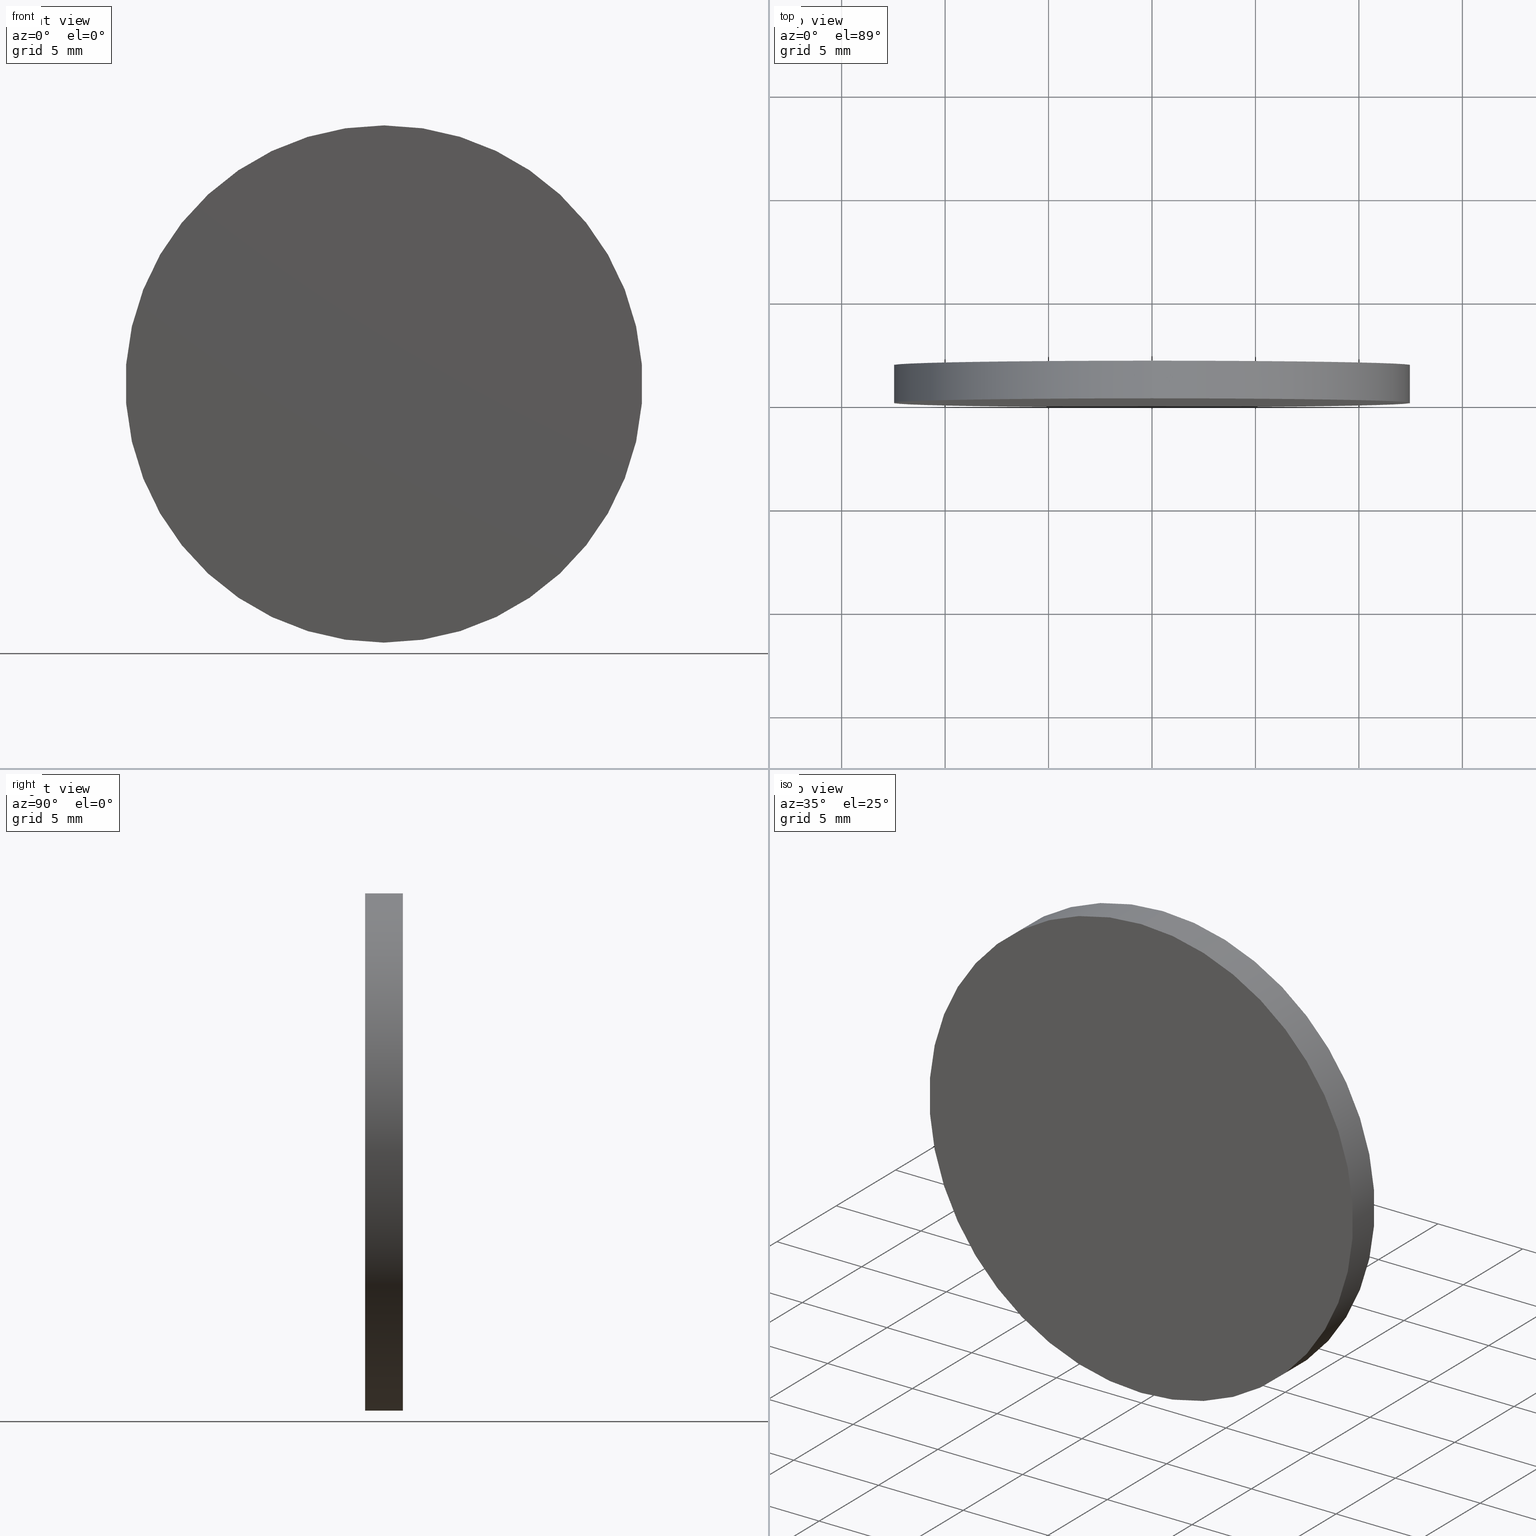
[diagram: canonical four-view strip — front | top / right | iso, engineering-drawing reading convention]
A machine part, canonical four-view strip (front | top / right | iso — engineering-drawing reading convention). The complete STEP part file that produces these views, byte-faithful:
ISO-10303-21;
HEADER;
FILE_DESCRIPTION (( 'STEP AP214' ),
    '1' );
FILE_NAME ('248588.STEP',
    '2019-08-06T03:28:31',
    ( 'user' ),
    ( '΢���й�' ),
    'SwSTEP 2.0',
    'SolidWorks 2016',
    '' );
FILE_SCHEMA (( 'AUTOMOTIVE_DESIGN' ));
ENDSEC;

DATA;
#1 = ORIENTED_EDGE ( 'NONE', *, *, #126, .F. ) ;
#2 = COLOUR_RGB ( '',1.000000000000000000, 1.000000000000000000, 1.000000000000000000 ) ;
#3 = FILL_AREA_STYLE ('',( #121 ) ) ;
#4 = ORIENTED_EDGE ( 'NONE', *, *, #66, .T. ) ;
#5 = PLANE ( 'NONE',  #127 ) ;
#6 = APPLICATION_CONTEXT ( 'automotive_design' ) ;
#7 = PRODUCT_CONTEXT ( 'NONE', #59, 'mechanical' ) ;
#8 = AXIS2_PLACEMENT_3D ( 'NONE', #47, #119, #57 ) ;
#9 = EDGE_LOOP ( 'NONE', ( #109, #114, #4, #116 ) ) ;
#10 = DIRECTION ( 'NONE',  ( 0.0000000000000000000, 0.0000000000000000000, -1.000000000000000000 ) ) ;
#11 = CARTESIAN_POINT ( 'NONE',  ( 1.530808498934191500E-015, 0.0000000000000000000, 12.50000000000000000 ) ) ;
#12 = AXIS2_PLACEMENT_3D ( 'NONE', #105, #93, #60 ) ;
#13 = VERTEX_POINT ( 'NONE', #115 ) ;
#14 = LINE ( 'NONE', #63, #22 ) ;
#15 = PRODUCT_DEFINITION_SHAPE ( 'NONE', 'NONE',  #118 ) ;
#16 = ADVANCED_FACE ( 'NONE', ( #88 ), #41, .T. ) ;
#17 =( NAMED_UNIT ( * ) SI_UNIT ( $, .STERADIAN. ) SOLID_ANGLE_UNIT ( ) );
#18 = AXIS2_PLACEMENT_3D ( 'NONE', #62, #137, #98 ) ;
#19 = DIRECTION ( 'NONE',  ( 0.0000000000000000000, -0.0000000000000000000, 1.000000000000000000 ) ) ;
#20 = CARTESIAN_POINT ( 'NONE',  ( 0.0000000000000000000, 1.820000000000000100, 0.0000000000000000000 ) ) ;
#21 = DIRECTION ( 'NONE',  ( 0.0000000000000000000, -0.0000000000000000000, 1.000000000000000000 ) ) ;
#22 = VECTOR ( 'NONE', #65, 1000.000000000000000 ) ;
#23 = PRODUCT_RELATED_PRODUCT_CATEGORY ( 'part', '', ( #67 ) ) ;
#24 = CARTESIAN_POINT ( 'NONE',  ( 0.0000000000000000000, 1.820000000000000100, 0.0000000000000000000 ) ) ;
#25 = PRESENTATION_LAYER_ASSIGNMENT (  '', '', ( #100 ) ) ;
#26 =( NAMED_UNIT ( * ) PLANE_ANGLE_UNIT ( ) SI_UNIT ( $, .RADIAN. ) );
#27 = UNCERTAINTY_MEASURE_WITH_UNIT (LENGTH_MEASURE( 1.000000000000000100E-005 ), #71, 'distance_accuracy_value', 'NONE');
#28 =( GEOMETRIC_REPRESENTATION_CONTEXT ( 3 ) GLOBAL_UNCERTAINTY_ASSIGNED_CONTEXT ( ( #69 ) ) GLOBAL_UNIT_ASSIGNED_CONTEXT ( ( #85, #26, #48 ) ) REPRESENTATION_CONTEXT ( 'NONE', 'WORKASPACE' ) );
#29 = ORIENTED_EDGE ( 'NONE', *, *, #112, .F. ) ;
#30 = CARTESIAN_POINT ( 'NONE',  ( 0.0000000000000000000, 1.820000000000000100, -12.50000000000000000 ) ) ;
#31 = PRESENTATION_STYLE_ASSIGNMENT (( #120 ) ) ;
#32 = AXIS2_PLACEMENT_3D ( 'NONE', #45, #122, #37 ) ;
#33 = EDGE_LOOP ( 'NONE', ( #106, #110 ) ) ;
#34 =( NAMED_UNIT ( * ) PLANE_ANGLE_UNIT ( ) SI_UNIT ( $, .RADIAN. ) );
#35 = ORIENTED_EDGE ( 'NONE', *, *, #66, .F. ) ;
#36 = DIRECTION ( 'NONE',  ( 0.0000000000000000000, 0.0000000000000000000, 1.000000000000000000 ) ) ;
#37 = DIRECTION ( 'NONE',  ( 0.0000000000000000000, 0.0000000000000000000, 1.000000000000000000 ) ) ;
#38 = VECTOR ( 'NONE', #111, 1000.000000000000000 ) ;
#39 =( NAMED_UNIT ( * ) PLANE_ANGLE_UNIT ( ) SI_UNIT ( $, .RADIAN. ) );
#40 =( GEOMETRIC_REPRESENTATION_CONTEXT ( 3 ) GLOBAL_UNCERTAINTY_ASSIGNED_CONTEXT ( ( #97 ) ) GLOBAL_UNIT_ASSIGNED_CONTEXT ( ( #61, #39, #124 ) ) REPRESENTATION_CONTEXT ( 'NONE', 'WORKASPACE' ) );
#41 = CYLINDRICAL_SURFACE ( 'NONE', #8, 12.50000000000000000 ) ;
#42 = CARTESIAN_POINT ( 'NONE',  ( 1.530808498934191500E-015, 1.820000000000000100, 12.50000000000000000 ) ) ;
#43 = CARTESIAN_POINT ( 'NONE',  ( 0.0000000000000000000, 1.820000000000000100, -12.50000000000000000 ) ) ;
#44 = CARTESIAN_POINT ( 'NONE',  ( 0.0000000000000000000, 0.0000000000000000000, 0.0000000000000000000 ) ) ;
#45 = CARTESIAN_POINT ( 'NONE',  ( 0.0000000000000000000, 0.0000000000000000000, 0.0000000000000000000 ) ) ;
#46 = SURFACE_STYLE_FILL_AREA ( #3 ) ;
#47 = CARTESIAN_POINT ( 'NONE',  ( 0.0000000000000000000, 1.820000000000000100, 0.0000000000000000000 ) ) ;
#48 =( NAMED_UNIT ( * ) SI_UNIT ( $, .STERADIAN. ) SOLID_ANGLE_UNIT ( ) );
#49 = EDGE_LOOP ( 'NONE', ( #29, #79, #139, #35 ) ) ;
#50 = CYLINDRICAL_SURFACE ( 'NONE', #108, 12.50000000000000000 ) ;
#51 = SURFACE_SIDE_STYLE ('',( #128 ) ) ;
#52 = ORIENTED_EDGE ( 'NONE', *, *, #102, .F. ) ;
#53 = CIRCLE ( 'NONE', #130, 12.50000000000000000 ) ;
#54 = ADVANCED_FACE ( 'NONE', ( #95 ), #83, .F. ) ;
#55 = VERTEX_POINT ( 'NONE', #11 ) ;
#56 = CIRCLE ( 'NONE', #18, 12.50000000000000000 ) ;
#57 = DIRECTION ( 'NONE',  ( 0.0000000000000000000, 0.0000000000000000000, -1.000000000000000000 ) ) ;
#58 = STYLED_ITEM ( 'NONE', ( #31 ), #134 ) ;
#59 = APPLICATION_CONTEXT ( 'automotive_design' ) ;
#60 = DIRECTION ( 'NONE',  ( 1.000000000000000000, 0.0000000000000000000, 0.0000000000000000000 ) ) ;
#61 =( LENGTH_UNIT ( ) NAMED_UNIT ( * ) SI_UNIT ( .MILLI., .METRE. ) );
#62 = CARTESIAN_POINT ( 'NONE',  ( 0.0000000000000000000, 1.820000000000000100, 0.0000000000000000000 ) ) ;
#63 = CARTESIAN_POINT ( 'NONE',  ( 1.530808498934191500E-015, 1.820000000000000100, 12.50000000000000000 ) ) ;
#64 = COLOUR_RGB ( '',1.000000000000000000, 1.000000000000000000, 1.000000000000000000 ) ;
#65 = DIRECTION ( 'NONE',  ( -0.0000000000000000000, -1.000000000000000000, -0.0000000000000000000 ) ) ;
#66 = EDGE_CURVE ( 'NONE', #80, #13, #123, .T. ) ;
#67 = PRODUCT ( '248588', '248588', '', ( #7 ) ) ;
#68 = PRESENTATION_LAYER_ASSIGNMENT (  '', '', ( #58 ) ) ;
#69 = UNCERTAINTY_MEASURE_WITH_UNIT (LENGTH_MEASURE( 1.000000000000000100E-005 ), #85, 'distance_accuracy_value', 'NONE');
#70 = DIRECTION ( 'NONE',  ( 0.0000000000000000000, 1.000000000000000000, 0.0000000000000000000 ) ) ;
#71 =( LENGTH_UNIT ( ) NAMED_UNIT ( * ) SI_UNIT ( .MILLI., .METRE. ) );
#72 = APPLICATION_PROTOCOL_DEFINITION ( 'draft international standard', 'automotive_design', 1998, #59 ) ;
#73 = DIRECTION ( 'NONE',  ( 0.0000000000000000000, 1.000000000000000000, 0.0000000000000000000 ) ) ;
#74 = CIRCLE ( 'NONE', #138, 12.50000000000000000 ) ;
#75 = APPLICATION_PROTOCOL_DEFINITION ( 'draft international standard', 'automotive_design', 1998, #6 ) ;
#76 = EDGE_CURVE ( 'NONE', #80, #89, #56, .T. ) ;
#77 = DIRECTION ( 'NONE',  ( -0.0000000000000000000, -1.000000000000000000, -0.0000000000000000000 ) ) ;
#78 = FACE_OUTER_BOUND ( 'NONE', #9, .T. ) ;
#79 = ORIENTED_EDGE ( 'NONE', *, *, #99, .T. ) ;
#80 = VERTEX_POINT ( 'NONE', #30 ) ;
#81 = SHAPE_DEFINITION_REPRESENTATION ( #15, #134 ) ;
#82 = FACE_OUTER_BOUND ( 'NONE', #33, .T. ) ;
#83 = PLANE ( 'NONE',  #84 ) ;
#84 = AXIS2_PLACEMENT_3D ( 'NONE', #131, #70, #21 ) ;
#85 =( LENGTH_UNIT ( ) NAMED_UNIT ( * ) SI_UNIT ( .MILLI., .METRE. ) );
#86 = EDGE_LOOP ( 'NONE', ( #52, #1 ) ) ;
#87 = DIRECTION ( 'NONE',  ( 0.0000000000000000000, 0.0000000000000000000, 1.000000000000000000 ) ) ;
#88 = FACE_OUTER_BOUND ( 'NONE', #49, .T. ) ;
#89 = VERTEX_POINT ( 'NONE', #42 ) ;
#90 = MANIFOLD_SOLID_BREP ( '͹̨-����1', #129 ) ;
#91 = PRESENTATION_STYLE_ASSIGNMENT (( #135 ) ) ;
#92 = MECHANICAL_DESIGN_GEOMETRIC_PRESENTATION_REPRESENTATION (  '', ( #100 ), #40 ) ;
#93 = DIRECTION ( 'NONE',  ( 0.0000000000000000000, 0.0000000000000000000, 1.000000000000000000 ) ) ;
#94 = DIRECTION ( 'NONE',  ( 0.0000000000000000000, 1.000000000000000000, 0.0000000000000000000 ) ) ;
#95 = FACE_OUTER_BOUND ( 'NONE', #86, .T. ) ;
#96 = CARTESIAN_POINT ( 'NONE',  ( 0.0000000000000000000, 1.820000000000000100, 0.0000000000000000000 ) ) ;
#97 = UNCERTAINTY_MEASURE_WITH_UNIT (LENGTH_MEASURE( 1.000000000000000100E-005 ), #61, 'distance_accuracy_value', 'NONE');
#98 = DIRECTION ( 'NONE',  ( 0.0000000000000000000, 0.0000000000000000000, 1.000000000000000000 ) ) ;
#99 = EDGE_CURVE ( 'NONE', #89, #55, #14, .T. ) ;
#100 = STYLED_ITEM ( 'NONE', ( #91 ), #90 ) ;
#101 = ADVANCED_FACE ( 'NONE', ( #78 ), #50, .T. ) ;
#102 = EDGE_CURVE ( 'NONE', #13, #55, #140, .T. ) ;
#103 = SURFACE_SIDE_STYLE ('',( #46 ) ) ;
#104 =( GEOMETRIC_REPRESENTATION_CONTEXT ( 3 ) GLOBAL_UNCERTAINTY_ASSIGNED_CONTEXT ( ( #27 ) ) GLOBAL_UNIT_ASSIGNED_CONTEXT ( ( #71, #34, #17 ) ) REPRESENTATION_CONTEXT ( 'NONE', 'WORKASPACE' ) );
#105 = CARTESIAN_POINT ( 'NONE',  ( 0.0000000000000000000, 0.0000000000000000000, 0.0000000000000000000 ) ) ;
#106 = ORIENTED_EDGE ( 'NONE', *, *, #76, .T. ) ;
#107 = FILL_AREA_STYLE_COLOUR ( '', #64 ) ;
#108 = AXIS2_PLACEMENT_3D ( 'NONE', #24, #77, #10 ) ;
#109 = ORIENTED_EDGE ( 'NONE', *, *, #99, .F. ) ;
#110 = ORIENTED_EDGE ( 'NONE', *, *, #112, .T. ) ;
#111 = DIRECTION ( 'NONE',  ( -0.0000000000000000000, -1.000000000000000000, -0.0000000000000000000 ) ) ;
#112 = EDGE_CURVE ( 'NONE', #89, #80, #74, .T. ) ;
#113 = ADVANCED_FACE ( 'NONE', ( #82 ), #5, .T. ) ;
#114 = ORIENTED_EDGE ( 'NONE', *, *, #76, .F. ) ;
#115 = CARTESIAN_POINT ( 'NONE',  ( 0.0000000000000000000, 0.0000000000000000000, -12.50000000000000000 ) ) ;
#116 = ORIENTED_EDGE ( 'NONE', *, *, #102, .T. ) ;
#117 = PRODUCT_DEFINITION_CONTEXT ( 'detailed design', #6, 'design' ) ;
#118 = PRODUCT_DEFINITION ( 'δ֪', '', #136, #117 ) ;
#119 = DIRECTION ( 'NONE',  ( -0.0000000000000000000, -1.000000000000000000, -0.0000000000000000000 ) ) ;
#120 = SURFACE_STYLE_USAGE ( .BOTH. , #103 ) ;
#121 = FILL_AREA_STYLE_COLOUR ( '', #2 ) ;
#122 = DIRECTION ( 'NONE',  ( 0.0000000000000000000, 1.000000000000000000, 0.0000000000000000000 ) ) ;
#123 = LINE ( 'NONE', #43, #38 ) ;
#124 =( NAMED_UNIT ( * ) SI_UNIT ( $, .STERADIAN. ) SOLID_ANGLE_UNIT ( ) );
#125 = FILL_AREA_STYLE ('',( #107 ) ) ;
#126 = EDGE_CURVE ( 'NONE', #55, #13, #53, .T. ) ;
#127 = AXIS2_PLACEMENT_3D ( 'NONE', #20, #73, #19 ) ;
#128 = SURFACE_STYLE_FILL_AREA ( #125 ) ;
#129 = CLOSED_SHELL ( 'NONE', ( #16, #101, #113, #54 ) ) ;
#130 = AXIS2_PLACEMENT_3D ( 'NONE', #44, #94, #36 ) ;
#131 = CARTESIAN_POINT ( 'NONE',  ( 0.0000000000000000000, 0.0000000000000000000, 0.0000000000000000000 ) ) ;
#132 = MECHANICAL_DESIGN_GEOMETRIC_PRESENTATION_REPRESENTATION (  '', ( #58 ), #104 ) ;
#133 = DIRECTION ( 'NONE',  ( 0.0000000000000000000, 1.000000000000000000, 0.0000000000000000000 ) ) ;
#134 = ADVANCED_BREP_SHAPE_REPRESENTATION ( '248588', ( #90, #12 ), #28 ) ;
#135 = SURFACE_STYLE_USAGE ( .BOTH. , #51 ) ;
#136 = PRODUCT_DEFINITION_FORMATION_WITH_SPECIFIED_SOURCE ( '�κ�', '', #67, .NOT_KNOWN. ) ;
#137 = DIRECTION ( 'NONE',  ( 0.0000000000000000000, 1.000000000000000000, 0.0000000000000000000 ) ) ;
#138 = AXIS2_PLACEMENT_3D ( 'NONE', #96, #133, #87 ) ;
#139 = ORIENTED_EDGE ( 'NONE', *, *, #126, .T. ) ;
#140 = CIRCLE ( 'NONE', #32, 12.50000000000000000 ) ;
ENDSEC;
END-ISO-10303-21;
